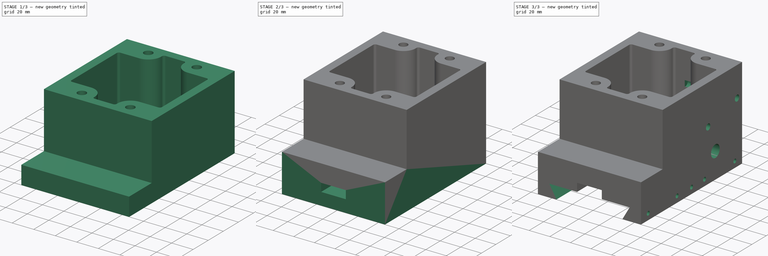
[diagram: build sequence overview — one tinted view per stage of 3, left to right]
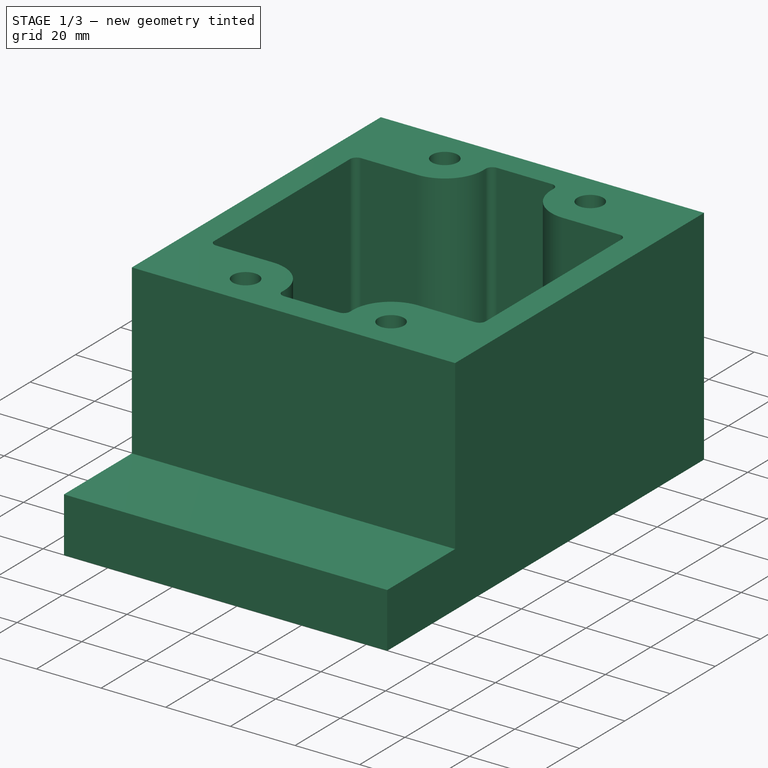
[diagram: stage 1 of 3 — iso view after this stage's code; geometry added in this stage tinted green]
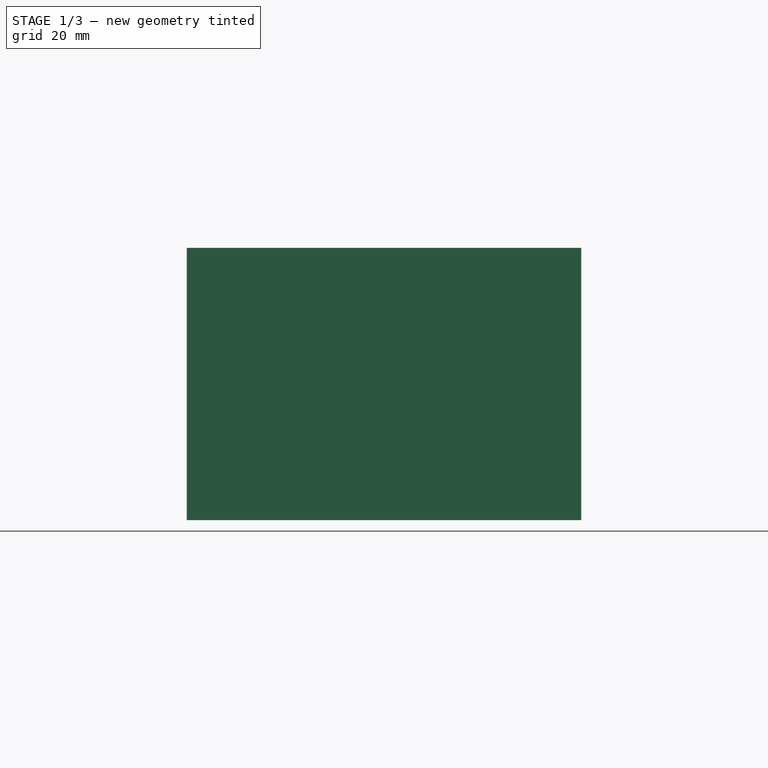
[diagram: stage 1 of 3 — front view after this stage's code; geometry added in this stage tinted green]
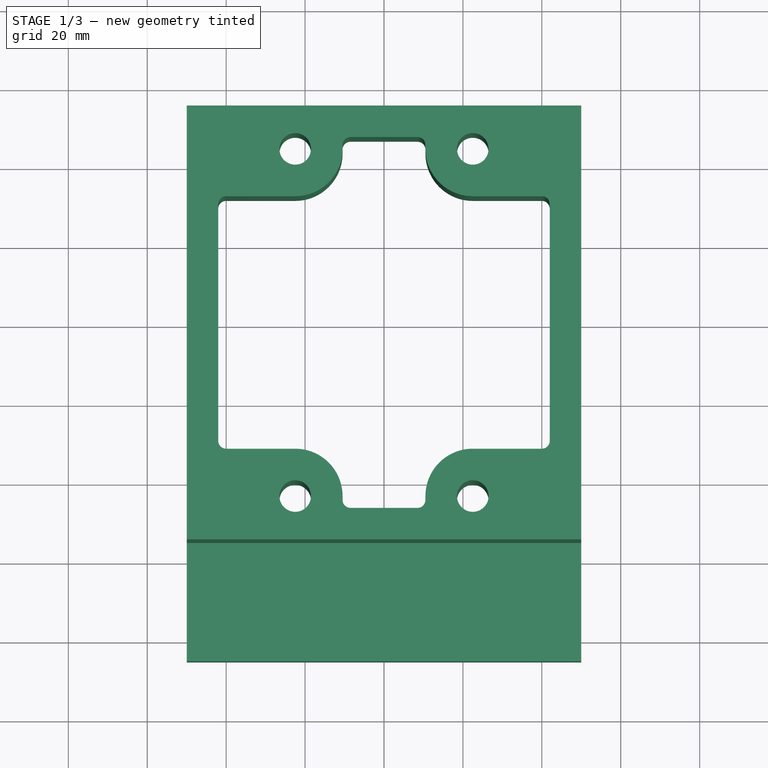
[diagram: stage 1 of 3 — top view after this stage's code; geometry added in this stage tinted green]
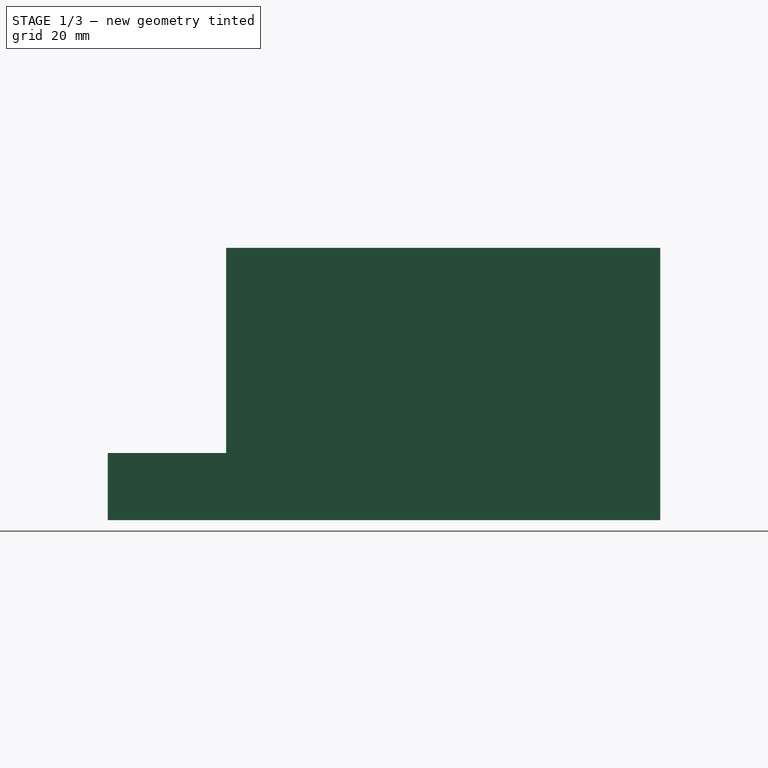
[diagram: stage 1 of 3 — right view after this stage's code; geometry added in this stage tinted green]
FCSTD DOCUMENT  (FreeCAD 0.16R5667 (Git))
Label: Spindle-box-seat-63
License: CreativeCommons Attribution-ShareAlike
LicenseURL: http://creativecommons.org/licenses/by-sa/4.0/
objects: Sketcher::SketchObject×8, PartDesign::Pocket×4, PartDesign::Pad×3
note: 22 computed .brp shape members not serialized (recipe doc carries the construction recipe); baked Part::Feature solids carry a one-line shape summary decoded from their .brp

FEATURE [Sketcher::SketchObject] Sketch
  sketch-geometry (33):
    g0: LineSegment StartX=-50 StartY=55 StartZ=0 EndX=50 EndY=55 EndZ=0
    g1: LineSegment StartX=50 StartY=55 StartZ=0 EndX=50 EndY=-85 EndZ=0
    g2: LineSegment StartX=50 StartY=-85 StartZ=0 EndX=-50 EndY=-85 EndZ=0
    g3: LineSegment StartX=-50 StartY=-85 StartZ=0 EndX=-50 EndY=55 EndZ=0
    g4: Circle CenterX=22.5 CenterY=44 CenterZ=0 NormalX=0 NormalY=0 NormalZ=1 Radius=4
    g5: Circle CenterX=-22.5 CenterY=44 CenterZ=0 NormalX=0 NormalY=0 NormalZ=1 Radius=4
    g6: ArcOfCircle CenterX=22.5 CenterY=44 CenterZ=0 NormalX=0 NormalY=0 NormalZ=1 Radius=12 StartAngle=3.14159 EndAngle=4.71239
    g7: ArcOfCircle CenterX=22.5 CenterY=-44 CenterZ=0 NormalX=0 NormalY=0 NormalZ=1 Radius=12 StartAngle=1.5708 EndAngle=3.14159
    g8: GeomPoint [constr] X=-0.009643 Y=0.060436 Z=0
    g9: LineSegment StartX=-22.5 StartY=32 StartZ=0 EndX=-40 EndY=32 EndZ=0
    g10: LineSegment StartX=22.5 StartY=32 StartZ=0 EndX=40 EndY=32 EndZ=0
    g11: LineSegment StartX=-10.5 StartY=-44 StartZ=0 EndX=-10.5 EndY=-45 EndZ=0
    g12: LineSegment StartX=10.5 StartY=-44 StartZ=0 EndX=10.5 EndY=-45 EndZ=0
    g13: LineSegment StartX=22.5 StartY=-32 StartZ=0 EndX=40 EndY=-32 EndZ=0
    g14: ArcOfCircle CenterX=-40 CenterY=-30 CenterZ=0 NormalX=0 NormalY=0 NormalZ=1 Radius=2 StartAngle=3.14159 EndAngle=4.71239
    g15: ArcOfCircle CenterX=40 CenterY=30 CenterZ=0 NormalX=0 NormalY=0 NormalZ=1 Radius=2 StartAngle=6.28318 EndAngle=7.85398
    g16: ArcOfCircle CenterX=40 CenterY=-30 CenterZ=0 NormalX=0 NormalY=0 NormalZ=1 Radius=2 StartAngle=4.71239 EndAngle=6.28319
    g17: ArcOfCircle CenterX=-8.5 CenterY=-45 CenterZ=0 NormalX=0 NormalY=0 NormalZ=1 Radius=2 StartAngle=3.14159 EndAngle=4.71239
    g18: ArcOfCircle CenterX=8.5 CenterY=-45 CenterZ=0 NormalX=0 NormalY=0 NormalZ=1 Radius=2 StartAngle=4.71239 EndAngle=6.28319
    g19: ArcOfCircle CenterX=-8.5 CenterY=45 CenterZ=0 NormalX=0 NormalY=0 NormalZ=1 Radius=2 StartAngle=1.5708 EndAngle=3.14158
    g20: ArcOfCircle CenterX=8.5 CenterY=45 CenterZ=0 NormalX=0 NormalY=0 NormalZ=1 Radius=2 StartAngle=8.08838e-06 EndAngle=1.5708
    g21: LineSegment StartX=-8.5 StartY=47 StartZ=0 EndX=8.5 EndY=47 EndZ=0
    g22: LineSegment StartX=-42 StartY=30 StartZ=0 EndX=-42 EndY=-30 EndZ=0
    g23: LineSegment StartX=42 StartY=30 StartZ=0 EndX=42 EndY=-30 EndZ=0
    g24: LineSegment StartX=-8.5 StartY=-47 StartZ=0 EndX=8.5 EndY=-47 EndZ=0
    g25: LineSegment StartX=-10.5 StartY=45 StartZ=0 EndX=-10.5 EndY=44 EndZ=0
    g26: LineSegment StartX=10.5 StartY=45 StartZ=0 EndX=10.5 EndY=44 EndZ=0
    g27: ArcOfCircle CenterX=-22.5 CenterY=-44 CenterZ=0 NormalX=0 NormalY=0 NormalZ=1 Radius=12 StartAngle=6.28319 EndAngle=7.85398
    g28: ArcOfCircle CenterX=-22.5 CenterY=44 CenterZ=0 NormalX=0 NormalY=0 NormalZ=1 Radius=12 StartAngle=4.71239 EndAngle=6.28319
    g29: ArcOfCircle CenterX=-40 CenterY=30 CenterZ=0 NormalX=0 NormalY=0 NormalZ=1 Radius=2 StartAngle=1.5708 EndAngle=3.14159
    g30: LineSegment StartX=-40 StartY=-32 StartZ=0 EndX=-22.5 EndY=-32 EndZ=0
    g31: Circle CenterX=-22.5 CenterY=-44 CenterZ=0 NormalX=0 NormalY=0 NormalZ=1 Radius=4
    g32: Circle CenterX=22.5 CenterY=-44 CenterZ=0 NormalX=0 NormalY=0 NormalZ=1 Radius=4
  constraints (103):
    c: Coincident(g0,g1)
    c: Coincident(g1,g2)
    c: Coincident(g2,g3)
    c: Coincident(g3,g0)
    c: Horizontal(g0)
    c: Horizontal(g2)
    c: Vertical(g3)
    c: DistanceX(g2,g1) = 100
    c: DistanceY(g-1,g2) = -85
    c: Equal(g5,g4)
    c: Radius(g5) = 4
    c: Symmetric(g5,g4,g-2)
    c: DistanceX(g5,g4) = 45
    c: Coincident(g6,g4)
    c: Horizontal(g10)
    c: Vertical(g11)
    c: Horizontal(g13)
    c: Coincident(g7,g13)
    c: Vertical(g12)
    c: Coincident(g12,g7)
    c: Coincident(g6,g10)
    c: Horizontal(g9)
    c: Coincident(g17,g11)
    c: Coincident(g12,g18)
    c: Coincident(g10,g15)
    c: Horizontal(g21)
    c: Coincident(g21,g20)
    c: Coincident(g19,g21)
    c: Vertical(g22)
    c: Coincident(g14,g22)
    c: Vertical(g23)
    c: Coincident(g16,g23)
    c: Coincident(g15,g23)
    c: Horizontal(g24)
    c: Coincident(g24,g18)
    c: Coincident(g24,g17)
    c: Equal(g19,g20)
    c: Equal(g20,g15)
    c: Equal(g15,g16)
    c: Equal(g16,g18)
    c: Equal(g18,g17)
    c: DistanceX(g1,g16) = -8
    c: Coincident(g16,g13)
    c: Tangent(g7,g13)
    c: Coincident(g25,g19)
    c: Tangent(g21,g20)
    c: Coincident(g26,g6)
    c: Coincident(g20,g26)
    c: Tangent(g17,g24)
    c: Tangent(g24,g18)
    c: Equal(g2,g0)
    c: Radius(g15) = 2
    c: Radius(g6) = 12
    c: Radius(g7) = 12
    c: Radius(g27) = 12
    c: Coincident(g11,g27)
    c: Tangent(g17,g11)
    c: Tangent(g27,g11)
    c: Tangent(g12,g18)
    c: Tangent(g12,g7)
    c: Tangent(g16,g23)
    c: Tangent(g13,g16)
    c: Tangent(g20,g26)
    c: Tangent(g25,g19)
    c: Coincident(g28,g5)
    c: Radius(g28) = 12
    c: Coincident(g28,g25)
    c: Coincident(g9,g28)
    c: Tangent(g28,g25)
    c: Tangent(g9,g28)
    c: Coincident(g29,g22)
    c: Coincident(g9,g29)
    c: Tangent(g29,g9)
    c: Tangent(g22,g29)
    c: Tangent(g6,g10)
    c: Tangent(g6,g26)
    c: Symmetric(g2,g1,g-2)
    c: Horizontal(g30)
    c: Coincident(g27,g30)
    c: Coincident(g14,g30)
    c: Tangent(g14,g22)
    c: Tangent(g14,g30)
    c: Tangent(g30,g27)
    c: Equal(g4,g32)
    c: Equal(g32,g31)
    c: Equal(g29,g15)
    c: Equal(g14,g16)
    c: Symmetric(g22,g15,g-2)
    c: Vertical(g25)
    c: Vertical(g26)
    c: Tangent(g19,g21)
    c: Symmetric(g27,g7,g-2)
    c: DistanceX(g27,g7) = 45
    c: DistanceY(g27,g5) = 88
    c: Coincident(g27,g31)
    c: Angle(g29) = 1.5708
    c: Symmetric(g17,g18,g-2)
    c: Coincident(g7,g32)
    c: Symmetric(g27,g5,g-1)
    c: Angle(g15) = 1.5708
    c: DistanceY(g1,g0) = 140
    c: Symmetric(g19,g17,g-1)
    c: DistanceY(g20,g0) = 8
FEATURE [Sketcher::SketchObject] Sketch002  label="wedge"
  sketch-geometry (4):
    g0: LineSegment StartX=-32 StartY=-22 StartZ=0 EndX=-38.9282 EndY=-10 EndZ=0
    g1: LineSegment StartX=-38.9282 StartY=-10 StartZ=0 EndX=38.9282 EndY=-10 EndZ=0
    g2: LineSegment StartX=38.9282 StartY=-10 StartZ=0 EndX=32 EndY=-22 EndZ=0
    g3: LineSegment StartX=32 StartY=-22 StartZ=0 EndX=-32 EndY=-22 EndZ=0
  constraints (12):
    c: Coincident(g0,g1)
    c: Coincident(g2,g3)
    c: Coincident(g3,g0)
    c: Horizontal(g3)
    c: Horizontal(g1)
    c: DistanceX(g-1,g0) = -32
    c: Angle(g0,g1) = 1.0472
    c: Symmetric(g0,g2,g-2)
    c: Coincident(g1,g2)
    c: Angle(g1,g2) = 1.0472
    c: DistanceY(g2,g1) = 12
    c: DistanceY(g-1,g1) = -10
FEATURE [PartDesign::Pad] Pad
  Length = 69
  Length2 = 100
  Sketch = -> Sketch
  Type = 0
FEATURE [Sketcher::SketchObject] Sketch001
  Support = -> Pad [Face34]
  sketch-geometry (4):
    g0: LineSegment StartX=-50 StartY=-55 StartZ=0 EndX=50 EndY=-55 EndZ=0
    g1: LineSegment StartX=50 StartY=-55 StartZ=0 EndX=50 EndY=-85 EndZ=0
    g2: LineSegment StartX=50 StartY=-85 StartZ=0 EndX=-50 EndY=-85 EndZ=0
    g3: LineSegment StartX=-50 StartY=-85 StartZ=0 EndX=-50 EndY=-55 EndZ=0
  constraints (12):
    c: Coincident(g0,g1)
    c: Coincident(g1,g2)
    c: Coincident(g2,g3)
    c: Coincident(g3,g0)
    c: Horizontal(g0)
    c: Horizontal(g2)
    c: Vertical(g1)
    c: Vertical(g3)
    c: Symmetric(g2,g1,g-2)
    c: DistanceY(g0,g1) = -30
    c: DistanceX(g2,g1) = 100
    c: DistanceY(g-1,g0) = -55
FEATURE [PartDesign::Pocket] Pocket
  Length = 52
  Sketch = -> Sketch001
  Type = 0
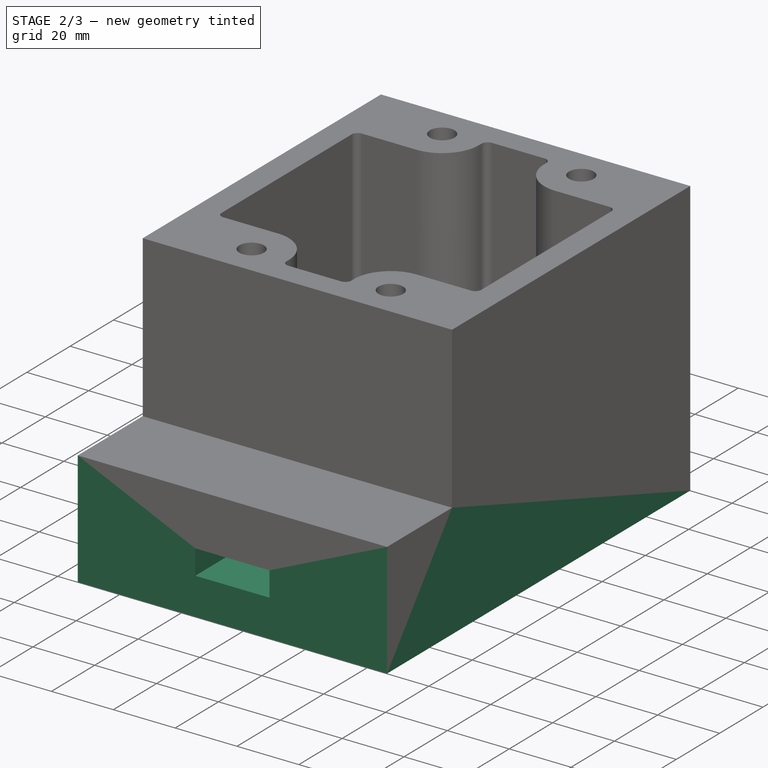
[diagram: stage 2 of 3 — iso view after this stage's code; geometry added in this stage tinted green]
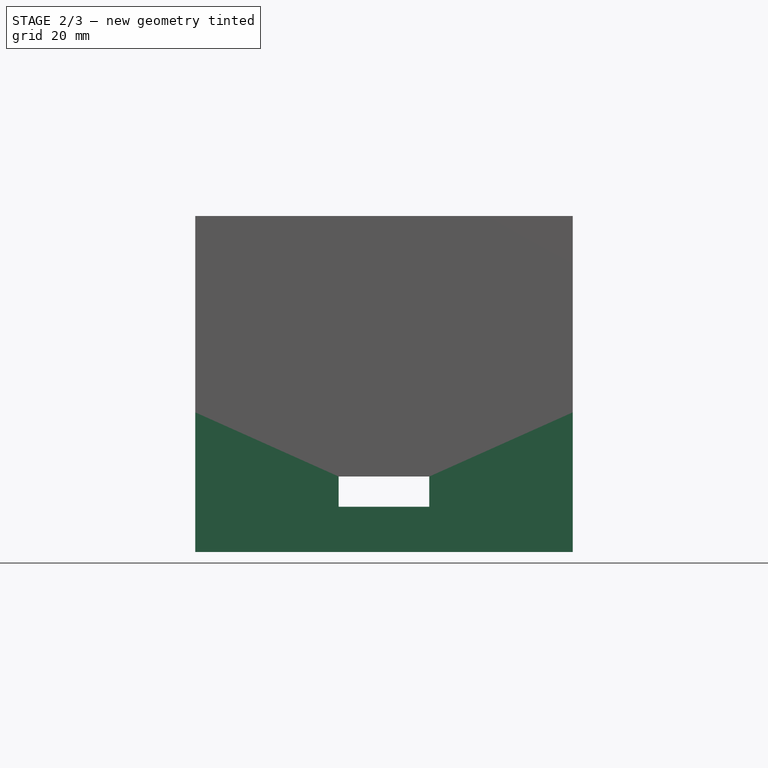
[diagram: stage 2 of 3 — front view after this stage's code; geometry added in this stage tinted green]
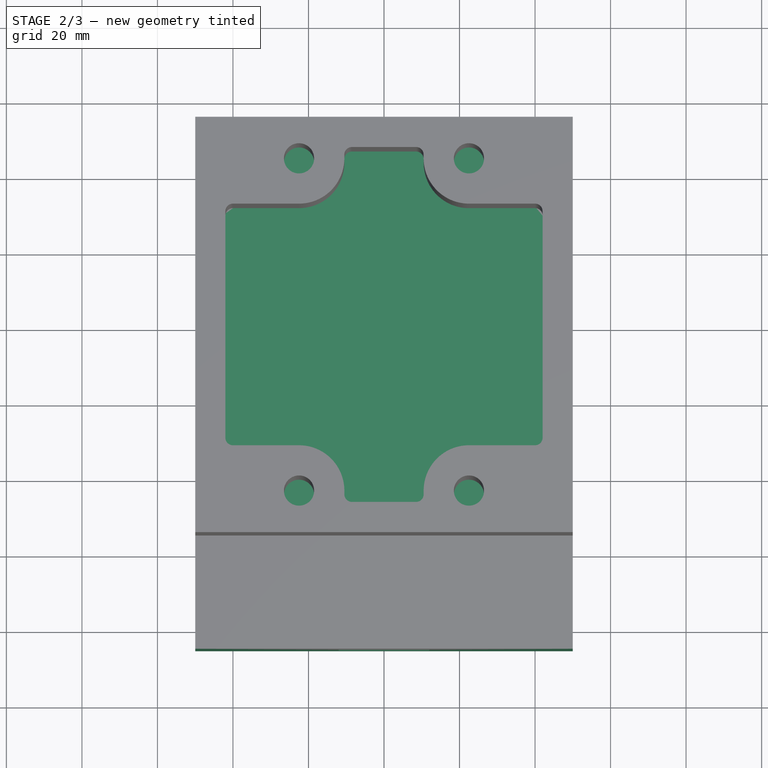
[diagram: stage 2 of 3 — top view after this stage's code; geometry added in this stage tinted green]
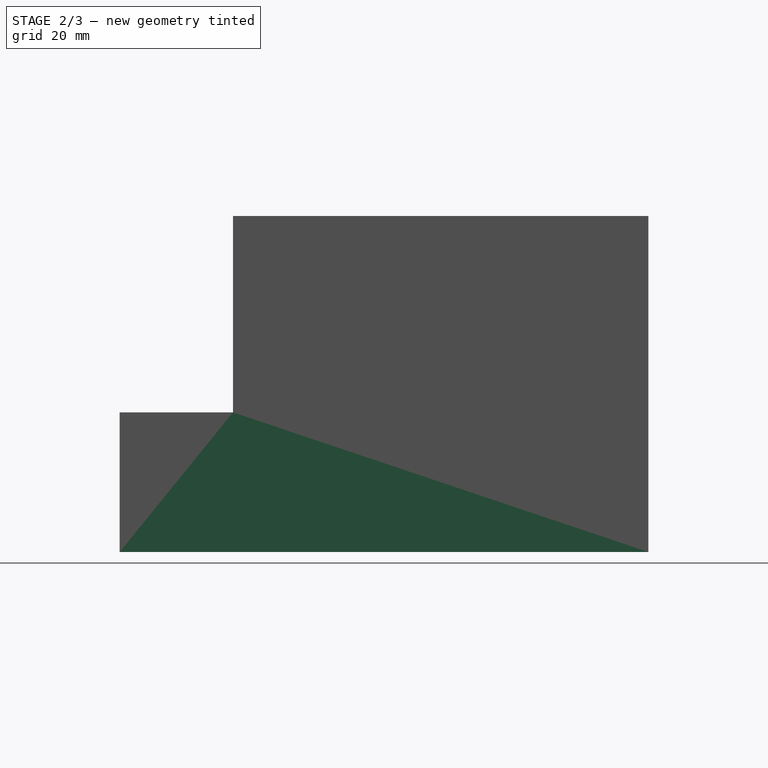
[diagram: stage 2 of 3 — right view after this stage's code; geometry added in this stage tinted green]
FEATURE [Sketcher::SketchObject] Sketch007  label="Sketch002"
  Support = -> Pocket [Face2]
  sketch-geometry (4):
    g0: Circle CenterX=-22.5 CenterY=-44 CenterZ=0 NormalX=0 NormalY=0 NormalZ=1 Radius=8
    g1: Circle CenterX=22.5 CenterY=-44 CenterZ=0 NormalX=0 NormalY=0 NormalZ=1 Radius=8
    g2: Circle CenterX=-22.5 CenterY=44 CenterZ=0 NormalX=0 NormalY=0 NormalZ=1 Radius=8
    g3: Circle CenterX=22.5 CenterY=44 CenterZ=0 NormalX=0 NormalY=0 NormalZ=1 Radius=8
  constraints (9):
    c: Symmetric(g0,g1,g-2)
    c: Symmetric(g2,g3,g-2)
    c: Symmetric(g2,g0,g-1)
    c: DistanceX(g0,g1) = 45
    c: DistanceY(g3) = 44
    c: Equal(g2,g3)
    c: Equal(g3,g1)
    c: Equal(g1,g0)
    c: Radius(g3) = 8
FEATURE [PartDesign::Pocket] Pocket001
  Length = 4
  Sketch = -> Sketch007
  Type = 0
FEATURE [Sketcher::SketchObject] Sketch003
  Placement = pos=(0,0,0) rot=(1,0,0;3.14159rad)
  Support = -> Pocket001 [Face2]
  sketch-geometry (12):
    g0: Circle CenterX=-22.5 CenterY=-44 CenterZ=0 NormalX=0 NormalY=0 NormalZ=1 Radius=8
    g1: Circle CenterX=22.5 CenterY=-44 CenterZ=0 NormalX=0 NormalY=0 NormalZ=1 Radius=8
    g2: Circle CenterX=-22.5 CenterY=44 CenterZ=0 NormalX=0 NormalY=0 NormalZ=1 Radius=8
    g3: Circle CenterX=22.5 CenterY=44 CenterZ=0 NormalX=0 NormalY=0 NormalZ=1 Radius=8
    g4: LineSegment StartX=-12 StartY=85 StartZ=0 EndX=-50 EndY=85 EndZ=0
    g5: LineSegment StartX=-50 StartY=85 StartZ=0 EndX=-50 EndY=-55 EndZ=0
    g6: LineSegment StartX=-50 StartY=-55 StartZ=0 EndX=-12 EndY=-55 EndZ=0
    g7: LineSegment StartX=-12 StartY=-55 StartZ=0 EndX=-12 EndY=85 EndZ=0
    g8: LineSegment StartX=12 StartY=85 StartZ=0 EndX=50 EndY=85 EndZ=0
    g9: LineSegment StartX=50 StartY=85 StartZ=0 EndX=50 EndY=-55 EndZ=0
    g10: LineSegment StartX=50 StartY=-55 StartZ=0 EndX=12 EndY=-55 EndZ=0
    g11: LineSegment StartX=12 StartY=-55 StartZ=0 EndX=12 EndY=85 EndZ=0
  constraints (32):
    c: Symmetric(g0,g1,g-2)
    c: Symmetric(g2,g3,g-2)
    c: Symmetric(g2,g0,g-1)
    c: DistanceX(g0,g1) = 45
    c: DistanceY(g3) = 44
    c: Equal(g2,g3)
    c: Equal(g3,g1)
    c: Equal(g1,g0)
    c: Radius(g3) = 8
    c: Coincident(g4,g5)
    c: Coincident(g5,g6)
    c: Coincident(g6,g7)
    c: Coincident(g7,g4)
    c: Horizontal(g4)
    c: Horizontal(g6)
    c: Vertical(g5)
    c: Vertical(g7)
    c: Coincident(g8,g9)
    c: Coincident(g9,g10)
    c: Coincident(g10,g11)
    c: Coincident(g11,g8)
    c: Horizontal(g8)
    c: Horizontal(g10)
    c: Vertical(g9)
    c: Vertical(g11)
    c: DistanceX(g6,g10) = 24
    c: DistanceX(g4,g8) = 100
    c: Equal(g9,g5)
    c: DistanceY(g9,g8) = 140
    c: Symmetric(g4,g8,g-2)
    c: Symmetric(g6,g10,g-2)
    c: DistanceY(g-1,g5) = -55
FEATURE [PartDesign::Pad] Pad001
  Length = 8
  Length2 = 100
  Sketch = -> Sketch003
  Type = 0
FEATURE [Sketcher::SketchObject] Sketch004
  Placement = pos=(0,0,-8) rot=(1,0,0;3.14159rad)
  Support = -> Pad001 [Face35]
  sketch-geometry (4):
    g0: LineSegment StartX=-50 StartY=85 StartZ=0 EndX=50 EndY=85 EndZ=0
    g1: LineSegment StartX=50 StartY=85 StartZ=0 EndX=50 EndY=-55 EndZ=0
    g2: LineSegment StartX=50 StartY=-55 StartZ=0 EndX=-50 EndY=-55 EndZ=0
    g3: LineSegment StartX=-50 StartY=-55 StartZ=0 EndX=-50 EndY=85 EndZ=0
  constraints (12):
    c: Coincident(g0,g1)
    c: Coincident(g1,g2)
    c: Coincident(g2,g3)
    c: Coincident(g3,g0)
    c: Horizontal(g0)
    c: Horizontal(g2)
    c: Vertical(g1)
    c: Vertical(g3)
    c: Symmetric(g0,g0,g-2)
    c: DistanceY(g-1,g1) = -55
    c: DistanceX(g0,g0) = 100
    c: DistanceY(g1,g0) = 140
FEATURE [PartDesign::Pad] Pad002
  Length = 12
  Length2 = 100
  Sketch = -> Sketch004
  Type = 0
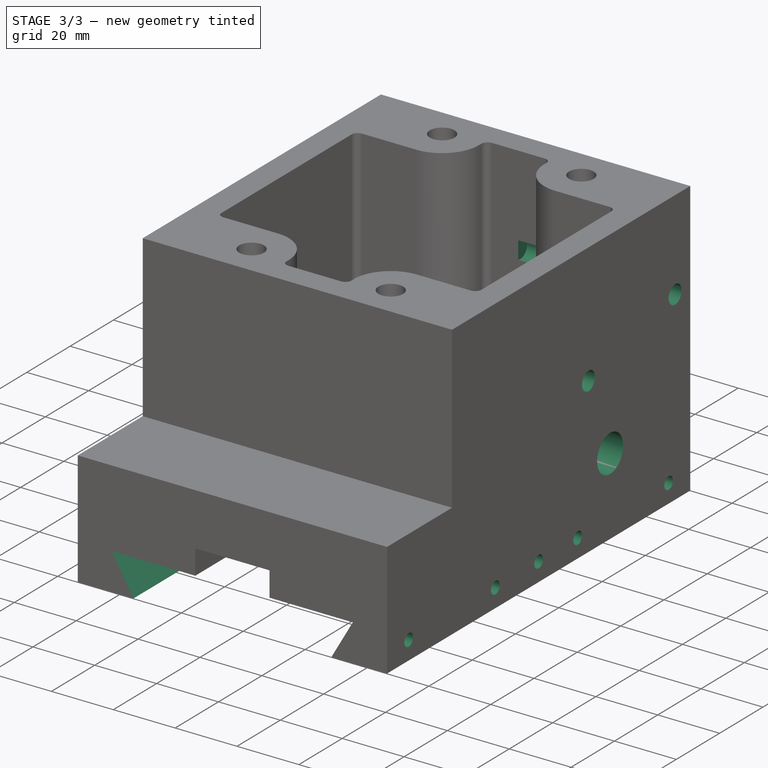
[diagram: stage 3 of 3 — iso view after this stage's code; geometry added in this stage tinted green]
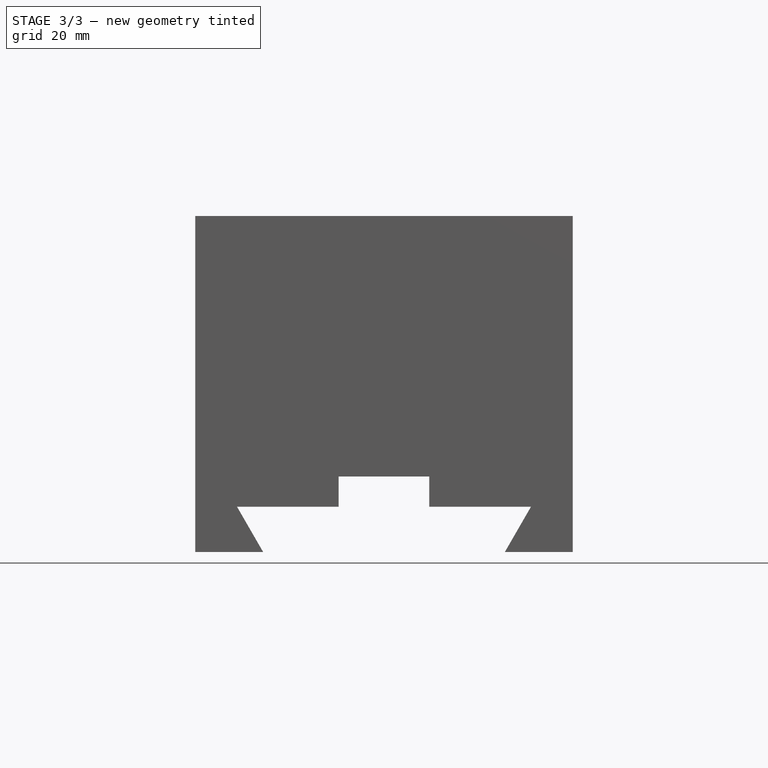
[diagram: stage 3 of 3 — front view after this stage's code; geometry added in this stage tinted green]
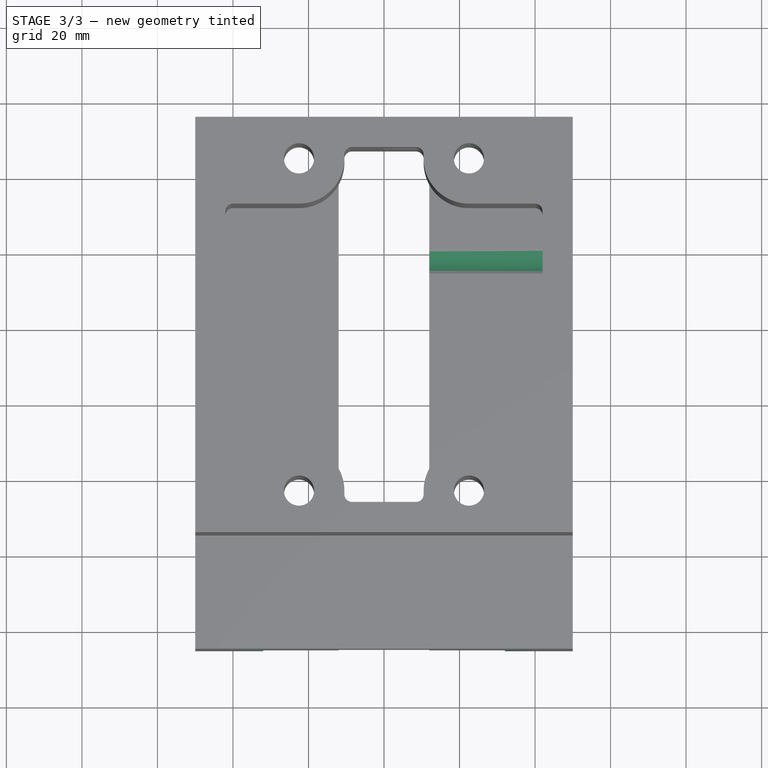
[diagram: stage 3 of 3 — top view after this stage's code; geometry added in this stage tinted green]
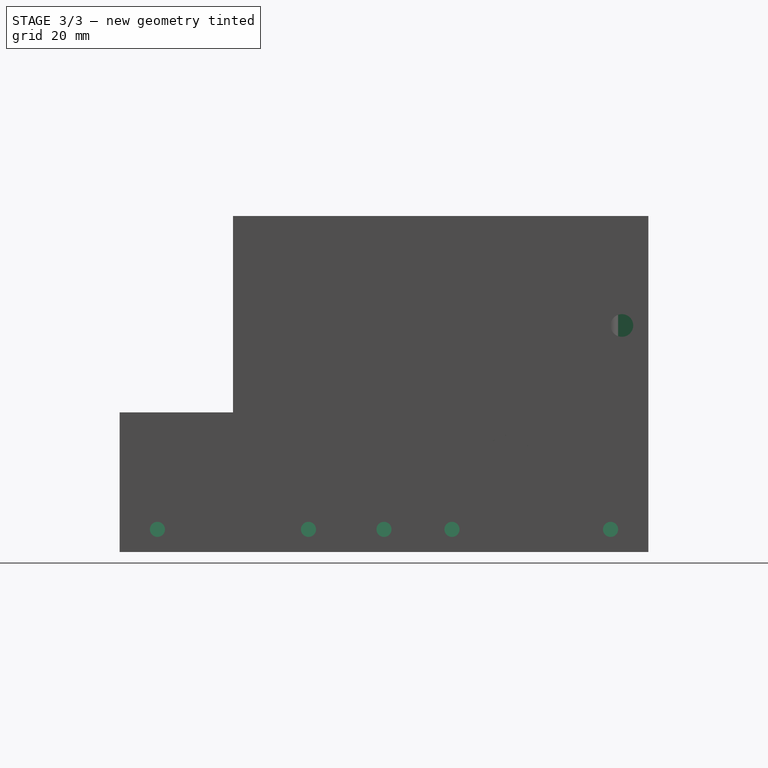
[diagram: stage 3 of 3 — right view after this stage's code; geometry added in this stage tinted green]
FEATURE [Sketcher::SketchObject] Sketch008
  Placement = pos=(0,-85,0) rot=(1,0,0;1.5708rad)
  Support = -> Pad002 [Face54]
  sketch-geometry (4):
    g0: LineSegment StartX=-32 StartY=-20 StartZ=0 EndX=-38.9282 EndY=-8 EndZ=0
    g1: LineSegment StartX=-38.9282 StartY=-8 StartZ=0 EndX=38.9282 EndY=-8 EndZ=0
    g2: LineSegment StartX=38.9282 StartY=-8 StartZ=0 EndX=32 EndY=-20 EndZ=0
    g3: LineSegment StartX=32 StartY=-20 StartZ=0 EndX=-32 EndY=-20 EndZ=0
  constraints (12):
    c: Coincident(g0,g1)
    c: Coincident(g1,g2)
    c: Coincident(g2,g3)
    c: Coincident(g0,g3)
    c: Horizontal(g3)
    c: Horizontal(g1)
    c: Angle(g1,g2) = 1.0472
    c: DistanceY(g2,g1) = 12
    c: DistanceY(g-1,g1) = -8
    c: Angle(g0,g1) = 1.0472
    c: DistanceX(g-1,g0) = -32
    c: Symmetric(g0,g2,g-2)
FEATURE [PartDesign::Pocket] Pocket002
  Length = 140
  Sketch = -> Sketch008
  Type = 0
FEATURE [Sketcher::SketchObject] Sketch009
  Placement = pos=(50,0,0) rot=(0.57735,0.57735,0.57735;2.0944rad)
  Support = -> Pocket002 [Face4]
  sketch-geometry (9):
    g0: Circle CenterX=-75 CenterY=-14 CenterZ=0 NormalX=0 NormalY=0 NormalZ=1 Radius=2
    g1: Circle CenterX=3 CenterY=-14 CenterZ=0 NormalX=0 NormalY=0 NormalZ=1 Radius=2
    g2: Circle CenterX=-15 CenterY=-14 CenterZ=0 NormalX=0 NormalY=0 NormalZ=1 Radius=2
    g3: Circle CenterX=-35 CenterY=-14 CenterZ=0 NormalX=0 NormalY=0 NormalZ=1 Radius=2
    g4: LineSegment [constr] StartX=-85 StartY=-14 StartZ=0 EndX=55 EndY=-14 EndZ=0
    g5: Circle CenterX=45 CenterY=-14 CenterZ=0 NormalX=0 NormalY=0 NormalZ=1 Radius=2
    g6: Circle CenterX=48 CenterY=40 CenterZ=0 NormalX=0 NormalY=0 NormalZ=1 Radius=3
    g7: Circle CenterX=8 CenterY=30 CenterZ=0 NormalX=0 NormalY=0 NormalZ=1 Radius=3
    g8: Circle CenterX=18 CenterY=5 CenterZ=0 NormalX=0 NormalY=0 NormalZ=1 Radius=6
  constraints (28):
    c: Horizontal(g4)
    c: DistanceX(g4) = 140
    c: DistanceX(g-1,g4) = 55
    c: DistanceY(g-1,g4) = -14
    c: PointOnObject(g0,g4)
    c: PointOnObject(g1,g4)
    c: PointOnObject(g2,g4)
    c: PointOnObject(g3,g4)
    c: DistanceX(g4,g0) = 10
    c: DistanceX(g4,g3) = 50
    c: PointOnObject(g5,g4)
    c: Equal(g2,g1)
    c: Equal(g1,g5)
    c: Equal(g5,g3)
    c: Equal(g0,g3)
    c: Radius(g5) = 2
    c: DistanceX(g4,g2) = 70
    c: DistanceX(g4,g1) = 88
    c: DistanceX(g5,g4) = -130
    c: DistanceX(g7,g6) = 40
    c: Equal(g6,g7)
    c: Radius(g6) = 3
    c: DistanceX(g-1,g7) = 8
    c: Radius(g8) = 6
    c: DistanceX(g-1,g8) = 18
    c: DistanceY(g-1,g8) = 5
    c: DistanceY(g-1,g7) = 30
    c: DistanceY(g7,g6) = 10
FEATURE [PartDesign::Pocket] Pocket003
  Length = 50
  Sketch = -> Sketch009
  Type = 0
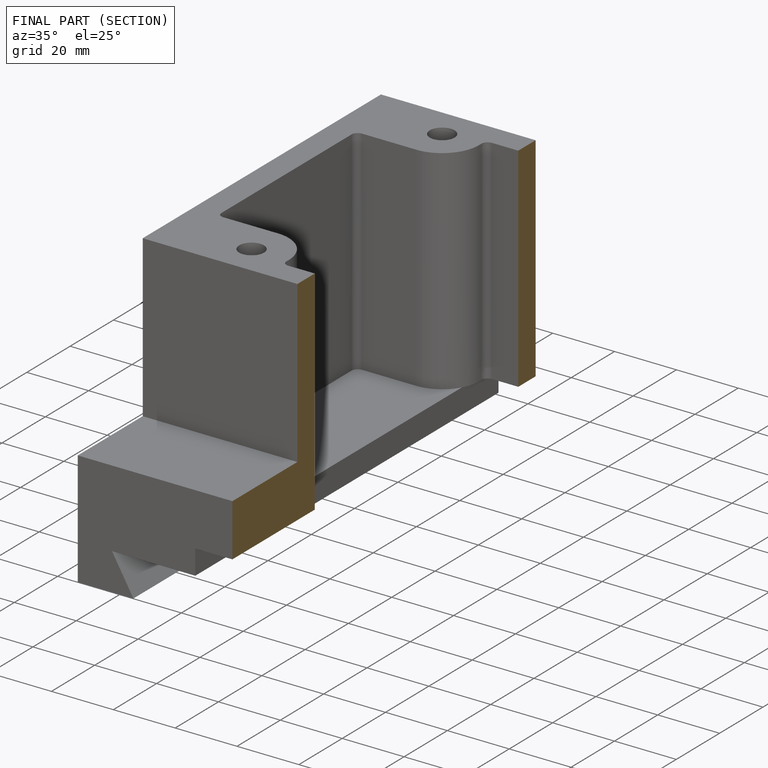
[diagram: finished part — half-section view (interior)]
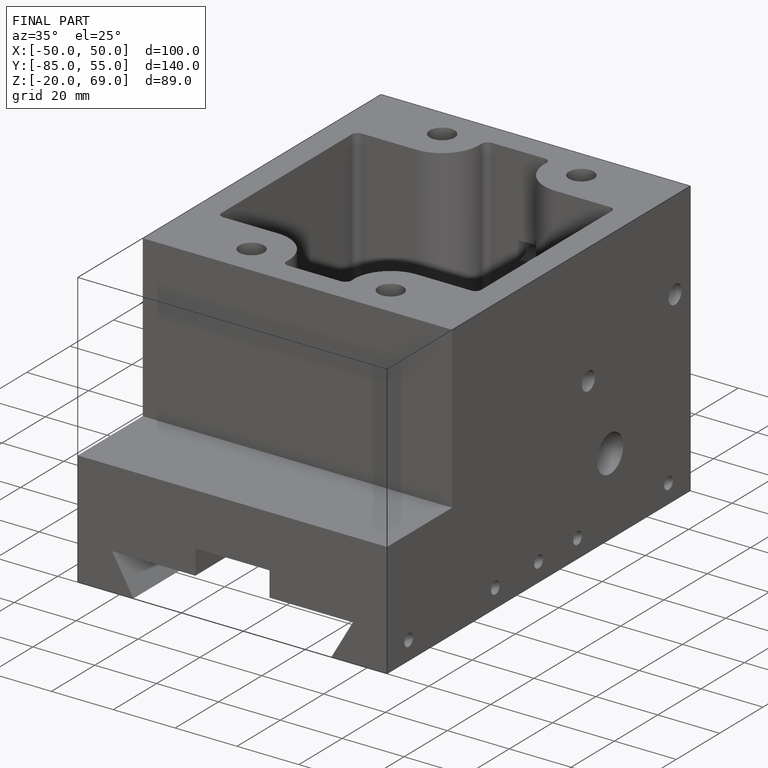
[diagram: finished part — iso view with bounding-box wireframe]
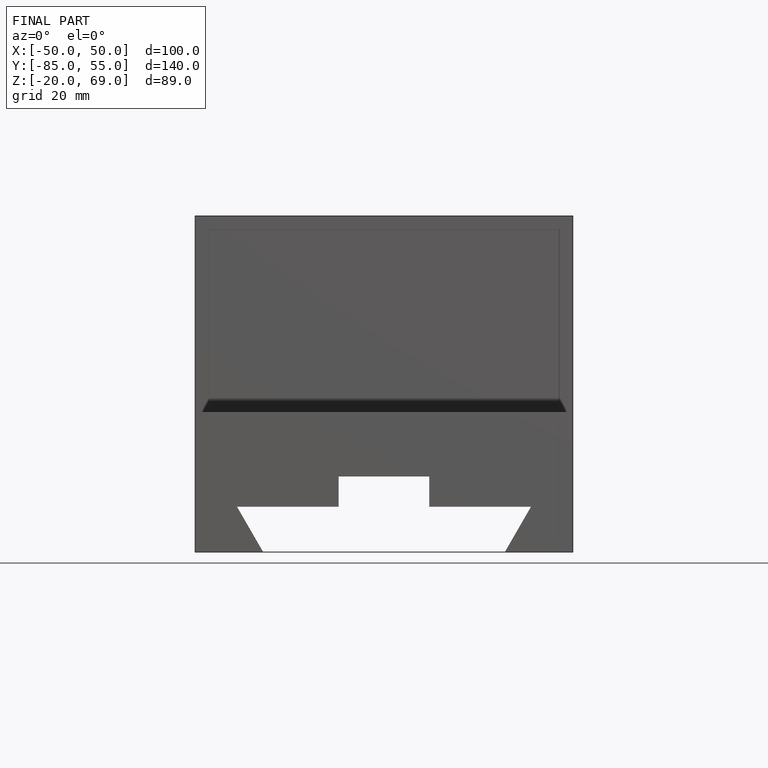
[diagram: finished part — front view with bounding-box wireframe]
